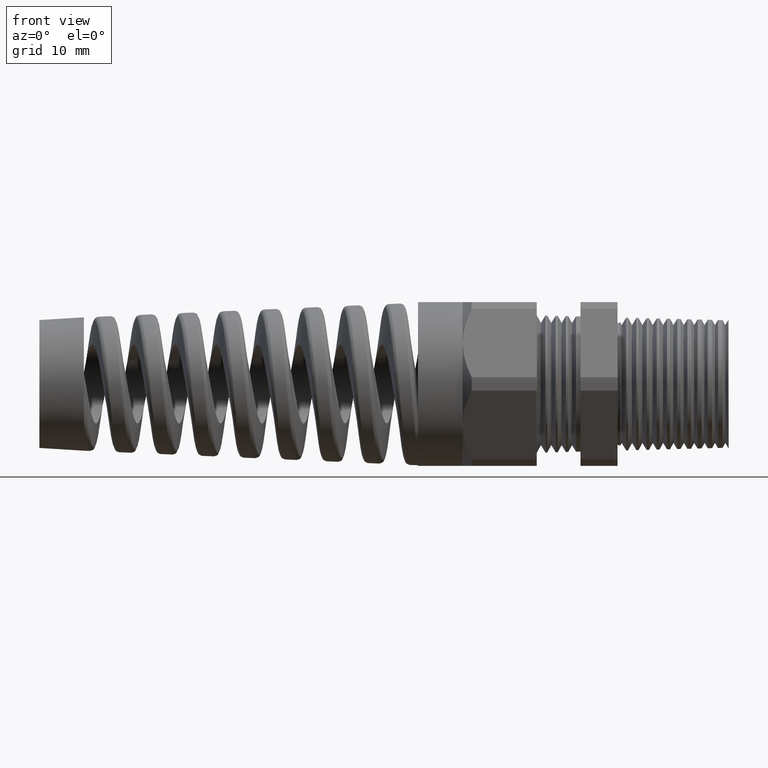
[diagram: clean part render]
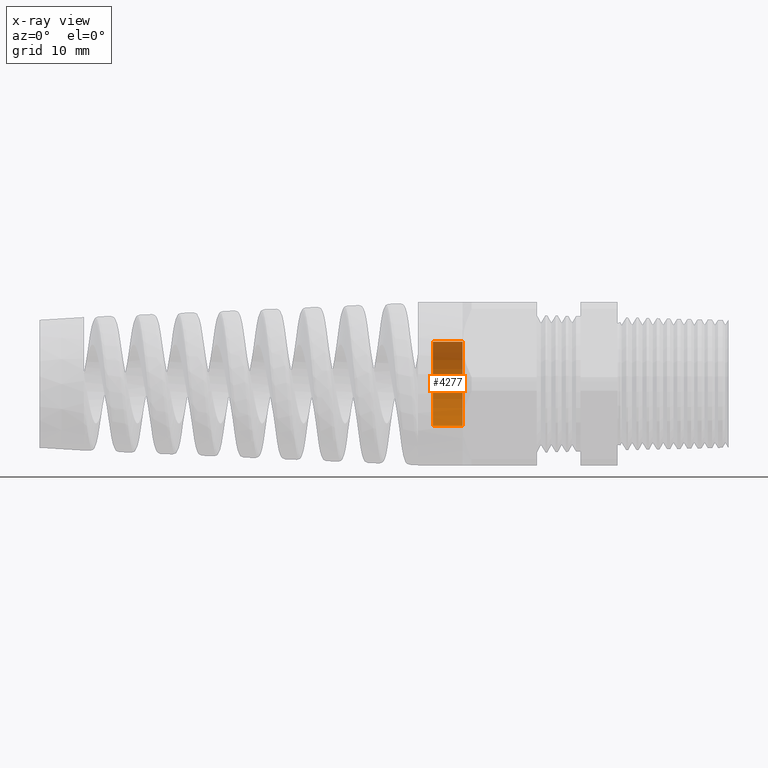
[diagram: x-ray — body ghosted, one internal face saturated and labeled with its STEP entity id]
A machine part, front view, then the same camera in x-ray: the body is ghosted and one INTERNAL B-rep face — a face not visible from any outside direction — is saturated and labeled: STEP entity #4277.
In plain terms, the highlighted cylindrical surface (partial cylindrical patch) has radius 5.69 mm, axis along (1, 0, 0).
Its self-contained STEP definition (entity closure, byte-faithful):
#2864 = CARTESIAN_POINT ( 'NONE',  ( -1.132519685039370200, 2.743414078608826300E-017, 0.2240167598134333900 ) ) ;
#2871 = CARTESIAN_POINT ( 'NONE',  ( -1.132519685039370200, 0.0000000000000000000, -0.2240167598134333900 ) ) ;
#3031 = DIRECTION ( 'NONE',  ( 1.000000000000000000, 0.0000000000000000000, 0.0000000000000000000 ) ) ;
#3032 = VECTOR ( 'NONE', #3031, 39.37007874015748100 ) ;
#3033 = CARTESIAN_POINT ( 'NONE',  ( -1.369721211586352600, 0.0000000000000000000, -0.2240167598134333900 ) ) ;
#3034 = LINE ( 'NONE', #3033, #3032 ) ;
#3035 = DIRECTION ( 'NONE',  ( 1.000000000000000000, 0.0000000000000000000, 0.0000000000000000000 ) ) ;
#3036 = VECTOR ( 'NONE', #3035, 39.37007874015748100 ) ;
#3037 = CARTESIAN_POINT ( 'NONE',  ( -1.369721211586352600, 2.743414078608826300E-017, 0.2240167598134333900 ) ) ;
#3038 = LINE ( 'NONE', #3037, #3036 ) ;
#3039 = CARTESIAN_POINT ( 'NONE',  ( -1.289999999999999800, 0.0000000000000000000, -0.2240167598134333900 ) ) ;
#3040 = CARTESIAN_POINT ( 'NONE',  ( -1.289999999999999800, 2.743414078608826300E-017, 0.2240167598134333900 ) ) ;
#4268 = ORIENTED_EDGE ( 'NONE', *, *, #9080, .T. ) ;
#4273 = ORIENTED_EDGE ( 'NONE', *, *, #4276, .T. ) ;
#4274 = ORIENTED_EDGE ( 'NONE', *, *, #9079, .F. ) ;
#4275 = EDGE_LOOP ( 'NONE', ( #4274, #4273, #4268, #14346 ) ) ;
#4276 = EDGE_CURVE ( 'NONE', #9076, #9077, #11303, .T. ) ;
#4277 = ADVANCED_FACE ( 'NONE', ( #11298 ), #11297, .F. ) ;
#7443 = DIRECTION ( 'NONE',  ( 0.0000000000000000000, 0.0000000000000000000, 1.000000000000000000 ) ) ;
#7444 = DIRECTION ( 'NONE',  ( 1.000000000000000000, 0.0000000000000000000, 0.0000000000000000000 ) ) ;
#7445 = CARTESIAN_POINT ( 'NONE',  ( -1.132519685039370200, 0.0000000000000000000, 0.0000000000000000000 ) ) ;
#7446 = AXIS2_PLACEMENT_3D ( 'NONE', #7445, #7444, #7443 ) ;
#7447 = CIRCLE ( 'NONE', #7446, 0.2240167598134333900 ) ;
#8899 = EDGE_CURVE ( 'NONE', #9000, #9003, #7447, .T. ) ;
#9000 = VERTEX_POINT ( 'NONE', #2871 ) ;
#9003 = VERTEX_POINT ( 'NONE', #2864 ) ;
#9076 = VERTEX_POINT ( 'NONE', #3040 ) ;
#9077 = VERTEX_POINT ( 'NONE', #3039 ) ;
#9079 = EDGE_CURVE ( 'NONE', #9076, #9003, #3038, .T. ) ;
#9080 = EDGE_CURVE ( 'NONE', #9077, #9000, #3034, .T. ) ;
#11297 = CYLINDRICAL_SURFACE ( 'NONE', #11347, 0.2240167598134333900 ) ;
#11298 = FACE_OUTER_BOUND ( 'NONE', #4275, .T. ) ;
#11299 = DIRECTION ( 'NONE',  ( 0.0000000000000000000, 0.0000000000000000000, -1.000000000000000000 ) ) ;
#11300 = DIRECTION ( 'NONE',  ( -1.000000000000000000, 0.0000000000000000000, 0.0000000000000000000 ) ) ;
#11301 = CARTESIAN_POINT ( 'NONE',  ( -1.289999999999999800, 0.0000000000000000000, 0.0000000000000000000 ) ) ;
#11302 = AXIS2_PLACEMENT_3D ( 'NONE', #11301, #11300, #11299 ) ;
#11303 = CIRCLE ( 'NONE', #11302, 0.2240167598134333900 ) ;
#11344 = DIRECTION ( 'NONE',  ( 0.0000000000000000000, 0.0000000000000000000, -1.000000000000000000 ) ) ;
#11345 = DIRECTION ( 'NONE',  ( 1.000000000000000000, 0.0000000000000000000, 0.0000000000000000000 ) ) ;
#11346 = CARTESIAN_POINT ( 'NONE',  ( -1.369721211586352600, 0.0000000000000000000, 0.0000000000000000000 ) ) ;
#11347 = AXIS2_PLACEMENT_3D ( 'NONE', #11346, #11345, #11344 ) ;
#14346 = ORIENTED_EDGE ( 'NONE', *, *, #8899, .T. ) ;